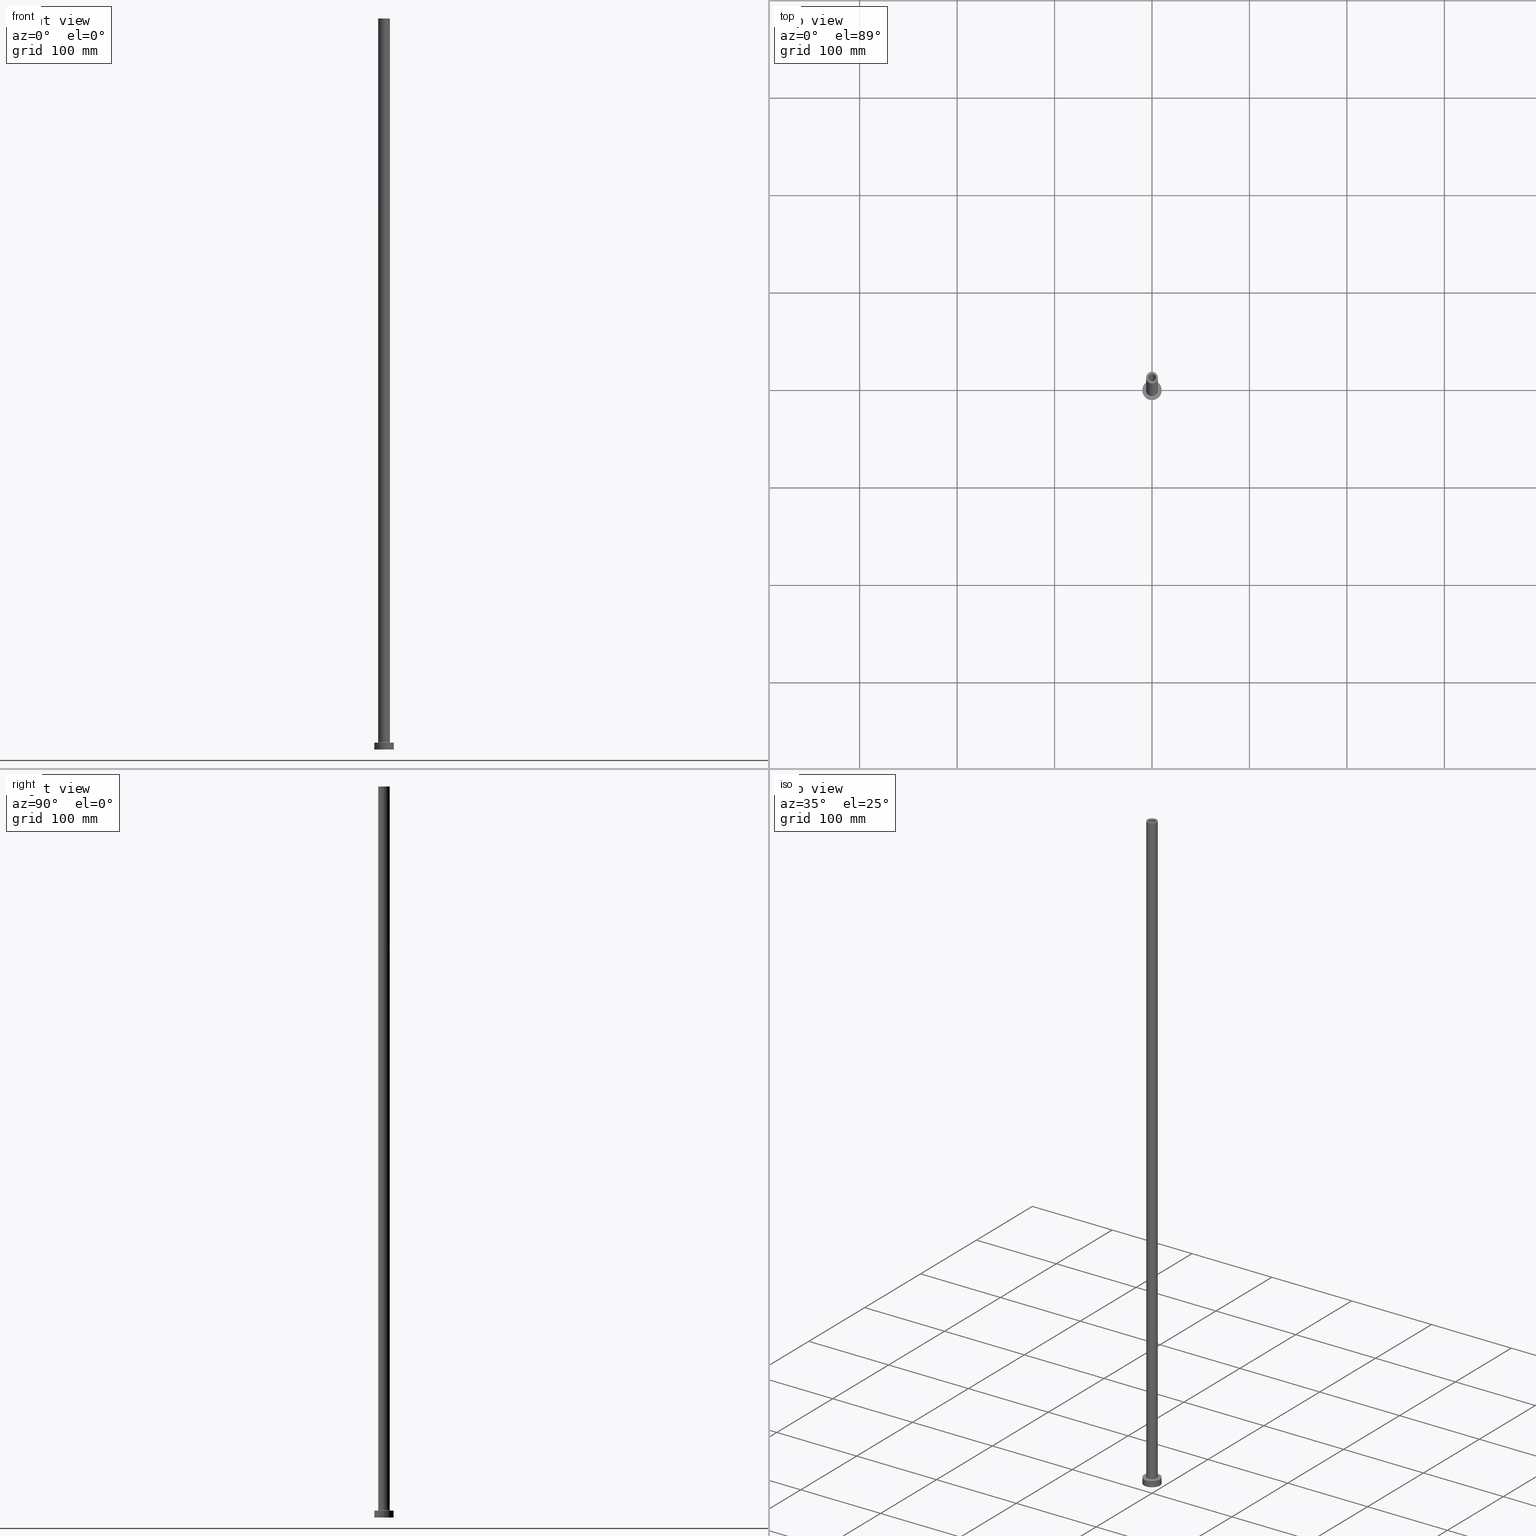
[diagram: canonical four-view strip — front | top / right | iso, engineering-drawing reading convention]
A machine part, canonical four-view strip (front | top / right | iso — engineering-drawing reading convention). The complete STEP part file that produces these views, byte-faithful:
ISO-10303-21;
HEADER;
FILE_DESCRIPTION (( 'STEP AP203' ),
    '1' );
FILE_NAME ('ae1d.STEP',
    '2023-02-13T12:42:11',
    ( '' ),
    ( '' ),
    'SwSTEP 2.0',
    'SolidWorks 2019',
    '' );
FILE_SCHEMA (( 'CONFIG_CONTROL_DESIGN' ));
ENDSEC;

DATA;
#1 = PERSON_AND_ORGANIZATION ( #293, #163 ) ;
#2 = CYLINDRICAL_SURFACE ( 'NONE', #360, 4.000000000000000000 ) ;
#3 = APPROVAL_STATUS ( 'not_yet_approved' ) ;
#4 = CARTESIAN_POINT ( 'NONE',  ( -6.000000000000000888, 0.000000000000000000, 7.700000000000040146 ) ) ;
#5 = AXIS2_PLACEMENT_3D ( 'NONE', #112, #359, #291 ) ;
#6 = APPROVAL_PERSON_ORGANIZATION ( #320, #319, #41 ) ;
#7 = EDGE_LOOP ( 'NONE', ( #169, #125, #131, #316 ) ) ;
#8 = CYLINDRICAL_SURFACE ( 'NONE', #130, 6.000000000000000888 ) ;
#9 = EDGE_CURVE ( 'NONE', #302, #449, #195, .T. ) ;
#10 = FACE_OUTER_BOUND ( 'NONE', #7, .T. ) ;
#11 = UNCERTAINTY_MEASURE_WITH_UNIT (LENGTH_MEASURE( 1.000000000000000082E-05 ), #453, 'distance_accuracy_value', 'NONE');
#12 = ORIENTED_EDGE ( 'NONE', *, *, #348, .F. ) ;
#13 = APPROVAL_STATUS ( 'not_yet_approved' ) ;
#14 = DIRECTION ( 'NONE',  ( -1.000000000000000000, 0.000000000000000000, 0.000000000000000000 ) ) ;
#15 = AXIS2_PLACEMENT_3D ( 'NONE', #233, #129, #236 ) ;
#16 = SECURITY_CLASSIFICATION ( '', '', #37 ) ;
#17 = VERTEX_POINT ( 'NONE', #373 ) ;
#18 = DIRECTION ( 'NONE',  ( 0.000000000000000000, 0.000000000000000000, 1.000000000000000000 ) ) ;
#19 = ORIENTED_EDGE ( 'NONE', *, *, #276, .F. ) ;
#20 = AXIS2_PLACEMENT_3D ( 'NONE', #26, #238, #211 ) ;
#21 = VERTEX_POINT ( 'NONE', #411 ) ;
#22 = LOCAL_TIME ( 13, 42, 11.00000000000000000, #358 ) ;
#23 = ORIENTED_EDGE ( 'NONE', *, *, #222, .F. ) ;
#24 = DIRECTION ( 'NONE',  ( 1.224646799147353207E-16, 1.000000000000000000, -0.000000000000000000 ) ) ;
#25 = PLANE ( 'NONE',  #234 ) ;
#26 = CARTESIAN_POINT ( 'NONE',  ( 0.000000000000000000, 0.000000000000000000, 705.0000000000000000 ) ) ;
#27 = CIRCLE ( 'NONE', #20, 4.000000000000000000 ) ;
#28 = APPROVAL_PERSON_ORGANIZATION ( #156, #275, #189 ) ;
#29 = DIRECTION ( 'NONE',  ( 1.000000000000000000, 0.000000000000000000, 0.000000000000000000 ) ) ;
#30 = EDGE_CURVE ( 'NONE', #132, #160, #85, .T. ) ;
#31 = DIRECTION ( 'NONE',  ( -0.000000000000000000, -0.000000000000000000, -1.000000000000000000 ) ) ;
#32 = AXIS2_PLACEMENT_3D ( 'NONE', #452, #133, #422 ) ;
#33 = DATE_AND_TIME ( #67, #22 ) ;
#34 = DIRECTION ( 'NONE',  ( 0.000000000000000000, 0.000000000000000000, -1.000000000000000000 ) ) ;
#35 = CALENDAR_DATE ( 2023, 13, 2 ) ;
#36 = PRODUCT_DEFINITION_FORMATION_WITH_SPECIFIED_SOURCE ( 'LIBOVOLN�', '', #179, .NOT_KNOWN. ) ;
#37 = SECURITY_CLASSIFICATION_LEVEL ( 'unclassified' ) ;
#38 = EDGE_CURVE ( 'NONE', #242, #128, #277, .T. ) ;
#39 = DIRECTION ( 'NONE',  ( -1.000000000000000000, 0.000000000000000000, 0.000000000000000000 ) ) ;
#40 = EDGE_LOOP ( 'NONE', ( #122, #290 ) ) ;
#41 = APPROVAL_ROLE ( '' ) ;
#42 = DIRECTION ( 'NONE',  ( 0.000000000000000000, 0.000000000000000000, -1.000000000000000000 ) ) ;
#43 = CC_DESIGN_PERSON_AND_ORGANIZATION_ASSIGNMENT ( #278, #250, ( #16 ) ) ;
#44 = DESIGN_CONTEXT ( 'detailed design', #214, 'design' ) ;
#45 = ORIENTED_EDGE ( 'NONE', *, *, #339, .T. ) ;
#46 = EDGE_LOOP ( 'NONE', ( #64, #174, #438, #212 ) ) ;
#47 = DIRECTION ( 'NONE',  ( -1.000000000000000000, 0.000000000000000000, 0.000000000000000000 ) ) ;
#48 = APPROVAL_PERSON_ORGANIZATION ( #402, #460, #256 ) ;
#49 = ADVANCED_FACE ( 'NONE', ( #347 ), #90, .F. ) ;
#50 = ORIENTED_EDGE ( 'NONE', *, *, #393, .F. ) ;
#51 = VERTEX_POINT ( 'NONE', #143 ) ;
#52 = CARTESIAN_POINT ( 'NONE',  ( 10.00000000000000000, 1.224646799147353256E-15, 7.000000000000000000 ) ) ;
#53 = ORIENTED_EDGE ( 'NONE', *, *, #343, .F. ) ;
#54 = CARTESIAN_POINT ( 'NONE',  ( 0.000000000000000000, 0.000000000000000000, 0.000000000000000000 ) ) ;
#55 = VECTOR ( 'NONE', #220, 1000.000000000000000 ) ;
#56 = DIRECTION ( 'NONE',  ( -1.000000000000000000, 0.000000000000000000, 0.000000000000000000 ) ) ;
#57 = CARTESIAN_POINT ( 'NONE',  ( -6.000000000000000888, 0.000000000000000000, 750.0000000000000000 ) ) ;
#58 = PLANE ( 'NONE',  #353 ) ;
#59 = CARTESIAN_POINT ( 'NONE',  ( -4.000000000000000000, 0.000000000000000000, 705.0000000000000000 ) ) ;
#60 = FACE_OUTER_BOUND ( 'NONE', #115, .T. ) ;
#61 = EDGE_CURVE ( 'NONE', #51, #355, #167, .T. ) ;
#62 = AXIS2_PLACEMENT_3D ( 'NONE', #273, #384, #386 ) ;
#63 = DIRECTION ( 'NONE',  ( 0.000000000000000000, 0.000000000000000000, 1.000000000000000000 ) ) ;
#64 = ORIENTED_EDGE ( 'NONE', *, *, #9, .F. ) ;
#65 = VERTEX_POINT ( 'NONE', #57 ) ;
#66 = CIRCLE ( 'NONE', #401, 4.150000000000000355 ) ;
#67 = CALENDAR_DATE ( 2023, 13, 2 ) ;
#68 = CARTESIAN_POINT ( 'NONE',  ( -6.000000000000000888, 0.000000000000000000, 750.0000000000000000 ) ) ;
#69 = EDGE_LOOP ( 'NONE', ( #135, #267, #337, #328 ) ) ;
#70 = SHAPE_DEFINITION_REPRESENTATION ( #176, #365 ) ;
#71 = DIRECTION ( 'NONE',  ( -0.000000000000000000, -0.000000000000000000, -1.000000000000000000 ) ) ;
#72 = CIRCLE ( 'NONE', #340, 10.00000000000000000 ) ;
#73 = ADVANCED_FACE ( 'NONE', ( #318 ), #2, .F. ) ;
#74 = DATE_TIME_ROLE ( 'creation_date' ) ;
#75 = CIRCLE ( 'NONE', #341, 6.000000000000000888 ) ;
#76 = DIRECTION ( 'NONE',  ( 1.000000000000000000, 0.000000000000000000, 0.000000000000000000 ) ) ;
#77 = CC_DESIGN_APPROVAL ( #275, ( #36 ) ) ;
#78 = PERSON_AND_ORGANIZATION ( #293, #163 ) ;
#79 = CARTESIAN_POINT ( 'NONE',  ( 0.000000000000000000, 0.000000000000000000, 750.0000000000000000 ) ) ;
#80 = ORIENTED_EDGE ( 'NONE', *, *, #38, .T. ) ;
#81 = CYLINDRICAL_SURFACE ( 'NONE', #84, 10.00000000000000000 ) ;
#82 = ORIENTED_EDGE ( 'NONE', *, *, #348, .T. ) ;
#83 = CARTESIAN_POINT ( 'NONE',  ( 10.00000000000000000, 1.224646799147353256E-15, 7.000000000000000000 ) ) ;
#84 = AXIS2_PLACEMENT_3D ( 'NONE', #403, #71, #39 ) ;
#85 = LINE ( 'NONE', #208, #286 ) ;
#86 = DIRECTION ( 'NONE',  ( 1.000000000000000000, 0.000000000000000000, -0.000000000000000000 ) ) ;
#87 = ADVANCED_FACE ( 'NONE', ( #424 ), #232, .T. ) ;
#88 = ORIENTED_EDGE ( 'NONE', *, *, #38, .F. ) ;
#89 = CARTESIAN_POINT ( 'NONE',  ( 0.000000000000000000, 0.000000000000000000, 7.000000000000000000 ) ) ;
#90 = CYLINDRICAL_SURFACE ( 'NONE', #311, 4.150000000000000355 ) ;
#91 = ORIENTED_EDGE ( 'NONE', *, *, #98, .T. ) ;
#92 = EDGE_CURVE ( 'NONE', #437, #21, #268, .T. ) ;
#93 = CARTESIAN_POINT ( 'NONE',  ( 0.000000000000000000, 0.000000000000000000, 750.0000000000000000 ) ) ;
#94 = CIRCLE ( 'NONE', #187, 6.000000000000000888 ) ;
#95 = CARTESIAN_POINT ( 'NONE',  ( -6.700000000000001066, 8.205133554287267548E-16, 7.000000000000020428 ) ) ;
#96 = DIRECTION ( 'NONE',  ( 1.000000000000000000, 0.000000000000000000, -0.000000000000000000 ) ) ;
#97 = CARTESIAN_POINT ( 'NONE',  ( 10.00000000000000000, 1.224646799147353256E-15, 0.000000000000000000 ) ) ;
#98 = EDGE_CURVE ( 'NONE', #65, #302, #243, .T. ) ;
#99 = CARTESIAN_POINT ( 'NONE',  ( 0.000000000000000000, 0.000000000000000000, 750.0000000000000000 ) ) ;
#100 = DIRECTION ( 'NONE',  ( 0.000000000000000000, 0.000000000000000000, -1.000000000000000000 ) ) ;
#101 = VECTOR ( 'NONE', #42, 1000.000000000000000 ) ;
#102 = LOCAL_TIME ( 13, 42, 11.00000000000000000, #361 ) ;
#103 = MANIFOLD_SOLID_BREP ( 'Odebrat vysunut�m4', #108 ) ;
#104 = EDGE_LOOP ( 'NONE', ( #50, #12 ) ) ;
#105 = ORIENTED_EDGE ( 'NONE', *, *, #215, .F. ) ;
#106 = MECHANICAL_CONTEXT ( 'NONE', #300, 'mechanical' ) ;
#107 = EDGE_CURVE ( 'NONE', #376, #408, #425, .T. ) ;
#108 = CLOSED_SHELL ( 'NONE', ( #306, #49, #172, #258, #228, #336, #432, #457, #87, #428, #314, #352, #369, #73 ) ) ;
#109 = ORIENTED_EDGE ( 'NONE', *, *, #379, .T. ) ;
#110 = APPROVAL_DATE_TIME ( #33, #275 ) ;
#111 = CC_DESIGN_PERSON_AND_ORGANIZATION_ASSIGNMENT ( #1, #283, ( #36 ) ) ;
#112 = CARTESIAN_POINT ( 'NONE',  ( 0.000000000000000000, 0.000000000000000000, 0.000000000000000000 ) ) ;
#113 = DIRECTION ( 'NONE',  ( -0.000000000000000000, -0.000000000000000000, -1.000000000000000000 ) ) ;
#114 = ORIENTED_EDGE ( 'NONE', *, *, #205, .F. ) ;
#115 = EDGE_LOOP ( 'NONE', ( #114, #80, #333, #23 ) ) ;
#116 = DATE_AND_TIME ( #399, #120 ) ;
#117 = DIRECTION ( 'NONE',  ( -1.000000000000000000, 0.000000000000000000, 0.000000000000000000 ) ) ;
#118 = CIRCLE ( 'NONE', #15, 4.000000000000000000 ) ;
#119 = CARTESIAN_POINT ( 'NONE',  ( 4.150000000000000355, 5.082284216461515156E-16, 716.7379725676967155 ) ) ;
#120 = LOCAL_TIME ( 13, 42, 11.00000000000000000, #186 ) ;
#121 = ORIENTED_EDGE ( 'NONE', *, *, #446, .F. ) ;
#122 = ORIENTED_EDGE ( 'NONE', *, *, #145, .T. ) ;
#123 = DIRECTION ( 'NONE',  ( 1.000000000000000000, 0.000000000000000000, 0.000000000000000000 ) ) ;
#124 = EDGE_LOOP ( 'NONE', ( #216, #264 ) ) ;
#125 = ORIENTED_EDGE ( 'NONE', *, *, #285, .T. ) ;
#126 = EDGE_CURVE ( 'NONE', #357, #437, #72, .T. ) ;
#127 = DIRECTION ( 'NONE',  ( 1.000000000000000000, 0.000000000000000000, -0.000000000000000000 ) ) ;
#128 = VERTEX_POINT ( 'NONE', #95 ) ;
#129 = DIRECTION ( 'NONE',  ( 0.000000000000000000, 0.000000000000000000, 1.000000000000000000 ) ) ;
#130 = AXIS2_PLACEMENT_3D ( 'NONE', #440, #191, #14 ) ;
#131 = ORIENTED_EDGE ( 'NONE', *, *, #145, .F. ) ;
#132 = VERTEX_POINT ( 'NONE', #235 ) ;
#133 = DIRECTION ( 'NONE',  ( 0.000000000000000000, 0.000000000000000000, 1.000000000000000000 ) ) ;
#134 = VERTEX_POINT ( 'NONE', #97 ) ;
#135 = ORIENTED_EDGE ( 'NONE', *, *, #396, .F. ) ;
#136 = CARTESIAN_POINT ( 'NONE',  ( 0.000000000000000000, 0.000000000000000000, 7.700000000000040146 ) ) ;
#137 = CARTESIAN_POINT ( 'NONE',  ( 0.000000000000000000, 0.000000000000000000, 705.0000000000000000 ) ) ;
#138 = DIRECTION ( 'NONE',  ( 1.000000000000000000, 0.000000000000000000, 0.000000000000000000 ) ) ;
#139 = AXIS2_PLACEMENT_3D ( 'NONE', #427, #63, #206 ) ;
#140 = DIRECTION ( 'NONE',  ( 0.000000000000000000, 0.000000000000000000, -1.000000000000000000 ) ) ;
#141 = EDGE_CURVE ( 'NONE', #134, #21, #297, .T. ) ;
#142 = CARTESIAN_POINT ( 'NONE',  ( 0.000000000000000000, 0.000000000000000000, 750.0000000000000000 ) ) ;
#143 = CARTESIAN_POINT ( 'NONE',  ( -4.150000000000000355, 0.000000000000000000, 705.0000000000000000 ) ) ;
#144 = VECTOR ( 'NONE', #407, 1000.000000000000000 ) ;
#145 = EDGE_CURVE ( 'NONE', #160, #366, #171, .T. ) ;
#146 = VECTOR ( 'NONE', #364, 1000.000000000000000 ) ;
#147 = EDGE_CURVE ( 'NONE', #366, #160, #27, .T. ) ;
#148 = APPLICATION_PROTOCOL_DEFINITION ( 'international standard', 'config_control_design', 1994, #300 ) ;
#149 = CC_DESIGN_PERSON_AND_ORGANIZATION_ASSIGNMENT ( #150, #323, ( #36 ) ) ;
#150 = PERSON_AND_ORGANIZATION ( #293, #163 ) ;
#151 = DIRECTION ( 'NONE',  ( 0.000000000000000000, 0.000000000000000000, -1.000000000000000000 ) ) ;
#152 = COORDINATED_UNIVERSAL_TIME_OFFSET ( 1, 0, .AHEAD. ) ;
#153 = EDGE_CURVE ( 'NONE', #437, #357, #262, .T. ) ;
#154 = CARTESIAN_POINT ( 'NONE',  ( 6.700000000000001066, 0.000000000000000000, 7.700000000000040146 ) ) ;
#155 = EDGE_LOOP ( 'NONE', ( #329, #82, #404, #261 ) ) ;
#156 = PERSON_AND_ORGANIZATION ( #293, #163 ) ;
#157 = DIRECTION ( 'NONE',  ( 0.000000000000000000, 0.000000000000000000, 1.000000000000000000 ) ) ;
#158 = PERSON_AND_ORGANIZATION ( #293, #163 ) ;
#159 = FACE_OUTER_BOUND ( 'NONE', #165, .T. ) ;
#160 = VERTEX_POINT ( 'NONE', #59 ) ;
#161 = ORIENTED_EDGE ( 'NONE', *, *, #304, .T. ) ;
#162 = DIRECTION ( 'NONE',  ( 0.000000000000000000, -1.000000000000000000, 0.000000000000000000 ) ) ;
#163 = ORGANIZATION ( 'NEUR�EN�', 'NEUR�EN�', '' ) ;
#164 = CARTESIAN_POINT ( 'NONE',  ( 4.150000000000000355, 5.082284216461515156E-16, 0.000000000000000000 ) ) ;
#165 = EDGE_LOOP ( 'NONE', ( #88, #301, #414, #224 ) ) ;
#166 =( NAMED_UNIT ( * ) SI_UNIT ( $, .STERADIAN. ) SOLID_ANGLE_UNIT ( ) );
#167 = CIRCLE ( 'NONE', #431, 4.150000000000000355 ) ;
#168 = ORIENTED_EDGE ( 'NONE', *, *, #248, .F. ) ;
#169 = ORIENTED_EDGE ( 'NONE', *, *, #393, .T. ) ;
#170 = FACE_OUTER_BOUND ( 'NONE', #296, .T. ) ;
#171 = CIRCLE ( 'NONE', #139, 4.000000000000000000 ) ;
#172 = ADVANCED_FACE ( 'NONE', ( #60 ), #274, .F. ) ;
#173 = ORIENTED_EDGE ( 'NONE', *, *, #343, .T. ) ;
#174 = ORIENTED_EDGE ( 'NONE', *, *, #98, .F. ) ;
#175 = DIRECTION ( 'NONE',  ( 0.000000000000000000, 0.000000000000000000, 1.000000000000000000 ) ) ;
#176 = PRODUCT_DEFINITION_SHAPE ( 'NONE', 'NONE',  #447 ) ;
#177 = CARTESIAN_POINT ( 'NONE',  ( 0.000000000000000000, 0.000000000000000000, 0.000000000000000000 ) ) ;
#178 = DIRECTION ( 'NONE',  ( 0.000000000000000000, 0.000000000000000000, 1.000000000000000000 ) ) ;
#179 = PRODUCT ( 'ae1d', 'ae1d', '', ( #106 ) ) ;
#180 = CIRCLE ( 'NONE', #5, 4.150000000000000355 ) ;
#181 = DIRECTION ( 'NONE',  ( 0.000000000000000000, 0.000000000000000000, 1.000000000000000000 ) ) ;
#182 = CARTESIAN_POINT ( 'NONE',  ( 0.000000000000000000, 0.000000000000000000, 750.0000000000000000 ) ) ;
#183 = CARTESIAN_POINT ( 'NONE',  ( 0.000000000000000000, 0.000000000000000000, 705.0000000000000000 ) ) ;
#184 = AXIS2_PLACEMENT_3D ( 'NONE', #89, #342, #86 ) ;
#185 = ORIENTED_EDGE ( 'NONE', *, *, #153, .T. ) ;
#186 = COORDINATED_UNIVERSAL_TIME_OFFSET ( 1, 0, .AHEAD. ) ;
#187 = AXIS2_PLACEMENT_3D ( 'NONE', #252, #439, #368 ) ;
#188 = AXIS2_PLACEMENT_3D ( 'NONE', #154, #162, #151 ) ;
#189 = APPROVAL_ROLE ( '' ) ;
#190 = CARTESIAN_POINT ( 'NONE',  ( 4.000000000000000000, 4.898587196589412829E-16, 750.0000000000000000 ) ) ;
#191 = DIRECTION ( 'NONE',  ( -0.000000000000000000, -0.000000000000000000, -1.000000000000000000 ) ) ;
#192 = ORIENTED_EDGE ( 'NONE', *, *, #92, .F. ) ;
#193 = APPROVAL_STATUS ( 'not_yet_approved' ) ;
#194 = CYLINDRICAL_SURFACE ( 'NONE', #388, 4.000000000000000000 ) ;
#195 = LINE ( 'NONE', #259, #144 ) ;
#196 =( GEOMETRIC_REPRESENTATION_CONTEXT ( 3 ) GLOBAL_UNCERTAINTY_ASSIGNED_CONTEXT ( ( #11 ) ) GLOBAL_UNIT_ASSIGNED_CONTEXT ( ( #453, #409, #166 ) ) REPRESENTATION_CONTEXT ( 'NONE', 'WORKASPACE' ) );
#197 = CARTESIAN_POINT ( 'NONE',  ( 0.000000000000000000, 0.000000000000000000, 7.700000000000040146 ) ) ;
#198 = CC_DESIGN_APPROVAL ( #319, ( #16 ) ) ;
#199 = ORIENTED_EDGE ( 'NONE', *, *, #269, .T. ) ;
#200 = AXIS2_PLACEMENT_3D ( 'NONE', #210, #24, #387 ) ;
#201 = DIRECTION ( 'NONE',  ( 0.000000000000000000, 0.000000000000000000, 1.000000000000000000 ) ) ;
#202 = CIRCLE ( 'NONE', #392, 4.000000000000000000 ) ;
#203 = DIRECTION ( 'NONE',  ( -0.000000000000000000, -0.000000000000000000, -1.000000000000000000 ) ) ;
#204 = FACE_OUTER_BOUND ( 'NONE', #444, .T. ) ;
#205 = EDGE_CURVE ( 'NONE', #242, #449, #461, .T. ) ;
#206 = DIRECTION ( 'NONE',  ( 1.000000000000000000, 0.000000000000000000, 0.000000000000000000 ) ) ;
#207 = DIRECTION ( 'NONE',  ( 1.000000000000000000, 0.000000000000000000, -0.000000000000000000 ) ) ;
#208 = CARTESIAN_POINT ( 'NONE',  ( -4.000000000000000000, 0.000000000000000000, 750.0000000000000000 ) ) ;
#209 = AXIS2_PLACEMENT_3D ( 'NONE', #272, #350, #29 ) ;
#210 = CARTESIAN_POINT ( 'NONE',  ( -6.700000000000001066, 8.205133554287267548E-16, 7.700000000000040146 ) ) ;
#211 = DIRECTION ( 'NONE',  ( 1.000000000000000000, 0.000000000000000000, 0.000000000000000000 ) ) ;
#212 = ORIENTED_EDGE ( 'NONE', *, *, #205, .T. ) ;
#213 = PERSON_AND_ORGANIZATION_ROLE ( 'creator' ) ;
#214 = APPLICATION_CONTEXT ( 'configuration controlled 3d designs of mechanical parts and assemblies' ) ;
#215 = EDGE_CURVE ( 'NONE', #355, #51, #66, .T. ) ;
#216 = ORIENTED_EDGE ( 'NONE', *, *, #107, .F. ) ;
#217 = CARTESIAN_POINT ( 'NONE',  ( 4.000000000000000000, 4.898587196589412829E-16, 750.0000000000000000 ) ) ;
#218 = AXIS2_PLACEMENT_3D ( 'NONE', #177, #203, #237 ) ;
#219 = DIRECTION ( 'NONE',  ( 0.000000000000000000, 0.000000000000000000, -1.000000000000000000 ) ) ;
#220 = DIRECTION ( 'NONE',  ( 0.000000000000000000, 0.000000000000000000, -1.000000000000000000 ) ) ;
#221 = ORIENTED_EDGE ( 'NONE', *, *, #61, .T. ) ;
#222 = EDGE_CURVE ( 'NONE', #449, #17, #307, .T. ) ;
#223 = CARTESIAN_POINT ( 'NONE',  ( -4.150000000000000355, 0.000000000000000000, 716.7379725676967155 ) ) ;
#224 = ORIENTED_EDGE ( 'NONE', *, *, #339, .F. ) ;
#225 = DIRECTION ( 'NONE',  ( 0.000000000000000000, 0.000000000000000000, -1.000000000000000000 ) ) ;
#226 = AXIS2_PLACEMENT_3D ( 'NONE', #430, #312, #429 ) ;
#227 = LINE ( 'NONE', #52, #382 ) ;
#228 = ADVANCED_FACE ( 'NONE', ( #321 ), #81, .T. ) ;
#229 = VERTEX_POINT ( 'NONE', #190 ) ;
#230 = ORIENTED_EDGE ( 'NONE', *, *, #276, .T. ) ;
#231 = CARTESIAN_POINT ( 'NONE',  ( 6.000000000000000888, 7.347880794884119736E-16, 7.700000000000040146 ) ) ;
#232 = CYLINDRICAL_SURFACE ( 'NONE', #331, 6.000000000000000888 ) ;
#233 = CARTESIAN_POINT ( 'NONE',  ( 0.000000000000000000, 0.000000000000000000, 750.0000000000000000 ) ) ;
#234 = AXIS2_PLACEMENT_3D ( 'NONE', #377, #175, #96 ) ;
#235 = CARTESIAN_POINT ( 'NONE',  ( -4.000000000000000000, 0.000000000000000000, 750.0000000000000000 ) ) ;
#236 = DIRECTION ( 'NONE',  ( 1.000000000000000000, 0.000000000000000000, 0.000000000000000000 ) ) ;
#237 = DIRECTION ( 'NONE',  ( 1.000000000000000000, 0.000000000000000000, 0.000000000000000000 ) ) ;
#238 = DIRECTION ( 'NONE',  ( 0.000000000000000000, 0.000000000000000000, 1.000000000000000000 ) ) ;
#239 = AXIS2_PLACEMENT_3D ( 'NONE', #266, #181, #308 ) ;
#240 = DIRECTION ( 'NONE',  ( -1.000000000000000000, 0.000000000000000000, 0.000000000000000000 ) ) ;
#241 = CC_DESIGN_APPROVAL ( #460, ( #447 ) ) ;
#242 = VERTEX_POINT ( 'NONE', #4 ) ;
#243 = CIRCLE ( 'NONE', #426, 6.000000000000000888 ) ;
#244 = EDGE_LOOP ( 'NONE', ( #371, #263, #354, #192 ) ) ;
#245 = AXIS2_PLACEMENT_3D ( 'NONE', #93, #445, #127 ) ;
#246 = DATE_TIME_ROLE ( 'classification_date' ) ;
#247 = DIRECTION ( 'NONE',  ( -0.000000000000000000, -0.000000000000000000, -1.000000000000000000 ) ) ;
#248 = EDGE_CURVE ( 'NONE', #65, #242, #332, .T. ) ;
#249 = ORIENTED_EDGE ( 'NONE', *, *, #309, .F. ) ;
#250 = PERSON_AND_ORGANIZATION_ROLE ( 'classification_officer' ) ;
#251 = DIRECTION ( 'NONE',  ( 1.000000000000000000, 0.000000000000000000, 0.000000000000000000 ) ) ;
#252 = CARTESIAN_POINT ( 'NONE',  ( 0.000000000000000000, 0.000000000000000000, 750.0000000000000000 ) ) ;
#253 = TOROIDAL_SURFACE ( 'NONE', #412, 6.700000000000001066, 0.6999999999999999556 ) ;
#254 = CC_DESIGN_DATE_AND_TIME_ASSIGNMENT ( #367, #74, ( #447 ) ) ;
#255 = DIRECTION ( 'NONE',  ( 0.000000000000000000, 0.000000000000000000, 1.000000000000000000 ) ) ;
#256 = APPROVAL_ROLE ( '' ) ;
#257 = CARTESIAN_POINT ( 'NONE',  ( 0.000000000000000000, 0.000000000000000000, 7.000000000000000000 ) ) ;
#258 = ADVANCED_FACE ( 'NONE', ( #325 ), #8, .T. ) ;
#259 = CARTESIAN_POINT ( 'NONE',  ( 6.000000000000000888, 7.347880794884119736E-16, 750.0000000000000000 ) ) ;
#260 = EDGE_LOOP ( 'NONE', ( #185, #451 ) ) ;
#261 = ORIENTED_EDGE ( 'NONE', *, *, #147, .F. ) ;
#262 = CIRCLE ( 'NONE', #289, 10.00000000000000000 ) ;
#263 = ORIENTED_EDGE ( 'NONE', *, *, #396, .T. ) ;
#264 = ORIENTED_EDGE ( 'NONE', *, *, #304, .F. ) ;
#265 = PLANE ( 'NONE',  #184 ) ;
#266 = CARTESIAN_POINT ( 'NONE',  ( 0.000000000000000000, 0.000000000000000000, 7.700000000000040146 ) ) ;
#267 = ORIENTED_EDGE ( 'NONE', *, *, #153, .F. ) ;
#268 = LINE ( 'NONE', #346, #390 ) ;
#269 = EDGE_CURVE ( 'NONE', #17, #128, #349, .T. ) ;
#270 = PLANE ( 'NONE',  #245 ) ;
#271 = DIRECTION ( 'NONE',  ( -0.000000000000000000, -0.000000000000000000, -1.000000000000000000 ) ) ;
#272 = CARTESIAN_POINT ( 'NONE',  ( 0.000000000000000000, 0.000000000000000000, 7.700000000000040146 ) ) ;
#273 = CARTESIAN_POINT ( 'NONE',  ( 0.000000000000000000, 0.000000000000000000, 0.000000000000000000 ) ) ;
#274 = TOROIDAL_SURFACE ( 'NONE', #239, 6.700000000000001066, 0.6999999999999999556 ) ;
#275 = APPROVAL ( #13, 'NEUR�EN�' ) ;
#276 = EDGE_CURVE ( 'NONE', #355, #408, #284, .T. ) ;
#277 = CIRCLE ( 'NONE', #200, 0.7000000000000000666 ) ;
#278 = PERSON_AND_ORGANIZATION ( #293, #163 ) ;
#279 = CARTESIAN_POINT ( 'NONE',  ( 0.000000000000000000, 0.000000000000000000, 7.000000000000000000 ) ) ;
#280 = AXIS2_PLACEMENT_3D ( 'NONE', #279, #247, #327 ) ;
#281 = CALENDAR_DATE ( 2023, 13, 2 ) ;
#282 = DIRECTION ( 'NONE',  ( -1.000000000000000000, 0.000000000000000000, 0.000000000000000000 ) ) ;
#283 = PERSON_AND_ORGANIZATION_ROLE ( 'creator' ) ;
#284 = LINE ( 'NONE', #119, #101 ) ;
#285 = EDGE_CURVE ( 'NONE', #229, #366, #395, .T. ) ;
#286 = VECTOR ( 'NONE', #423, 1000.000000000000000 ) ;
#287 = FACE_OUTER_BOUND ( 'NONE', #434, .T. ) ;
#288 = ORIENTED_EDGE ( 'NONE', *, *, #107, .T. ) ;
#289 = AXIS2_PLACEMENT_3D ( 'NONE', #351, #178, #305 ) ;
#290 = ORIENTED_EDGE ( 'NONE', *, *, #147, .T. ) ;
#291 = DIRECTION ( 'NONE',  ( 1.000000000000000000, 0.000000000000000000, 0.000000000000000000 ) ) ;
#292 = ORIENTED_EDGE ( 'NONE', *, *, #61, .F. ) ;
#293 = PERSON ( 'NEUR�EN�', 'NEUR�EN�', 'NEUR�EN�', ('NEUR�EN�'), ('NEUR�EN�'), ('NEUR�EN�') ) ;
#294 = ORIENTED_EDGE ( 'NONE', *, *, #309, .T. ) ;
#295 = FACE_BOUND ( 'NONE', #40, .T. ) ;
#296 = EDGE_LOOP ( 'NONE', ( #91, #294 ) ) ;
#297 = CIRCLE ( 'NONE', #62, 10.00000000000000000 ) ;
#298 = LOCAL_TIME ( 13, 42, 11.00000000000000000, #152 ) ;
#299 = CARTESIAN_POINT ( 'NONE',  ( -10.00000000000000000, 0.000000000000000000, 7.000000000000000000 ) ) ;
#300 = APPLICATION_CONTEXT ( 'configuration controlled 3d designs of mechanical parts and assemblies' ) ;
#301 = ORIENTED_EDGE ( 'NONE', *, *, #379, .F. ) ;
#302 = VERTEX_POINT ( 'NONE', #433 ) ;
#303 = DIRECTION ( 'NONE',  ( 1.000000000000000000, 0.000000000000000000, 0.000000000000000000 ) ) ;
#304 = EDGE_CURVE ( 'NONE', #408, #376, #180, .T. ) ;
#305 = DIRECTION ( 'NONE',  ( 1.000000000000000000, 0.000000000000000000, 0.000000000000000000 ) ) ;
#306 = ADVANCED_FACE ( 'NONE', ( #10 ), #194, .F. ) ;
#307 = CIRCLE ( 'NONE', #188, 0.7000000000000000666 ) ;
#308 = DIRECTION ( 'NONE',  ( 1.000000000000000000, 0.000000000000000000, 0.000000000000000000 ) ) ;
#309 = EDGE_CURVE ( 'NONE', #302, #65, #94, .T. ) ;
#310 = DIRECTION ( 'NONE',  ( 0.000000000000000000, 0.000000000000000000, 1.000000000000000000 ) ) ;
#311 = AXIS2_PLACEMENT_3D ( 'NONE', #456, #140, #459 ) ;
#312 = DIRECTION ( 'NONE',  ( 0.000000000000000000, 0.000000000000000000, 1.000000000000000000 ) ) ;
#313 = AXIS2_PLACEMENT_3D ( 'NONE', #400, #113, #251 ) ;
#314 = ADVANCED_FACE ( 'NONE', ( #159 ), #253, .F. ) ;
#315 = EDGE_LOOP ( 'NONE', ( #249, #416, #109, #168 ) ) ;
#316 = ORIENTED_EDGE ( 'NONE', *, *, #30, .F. ) ;
#317 = APPLICATION_PROTOCOL_DEFINITION ( 'international standard', 'config_control_design', 1994, #214 ) ;
#318 = FACE_OUTER_BOUND ( 'NONE', #155, .T. ) ;
#319 = APPROVAL ( #3, 'NEUR�EN�' ) ;
#320 = PERSON_AND_ORGANIZATION ( #293, #163 ) ;
#321 = FACE_OUTER_BOUND ( 'NONE', #244, .T. ) ;
#322 = LOCAL_TIME ( 13, 42, 11.00000000000000000, #405 ) ;
#323 = PERSON_AND_ORGANIZATION_ROLE ( 'design_supplier' ) ;
#324 = CC_DESIGN_PERSON_AND_ORGANIZATION_ASSIGNMENT ( #78, #213, ( #447 ) ) ;
#325 = FACE_OUTER_BOUND ( 'NONE', #315, .T. ) ;
#326 = APPROVAL_DATE_TIME ( #330, #460 ) ;
#327 = DIRECTION ( 'NONE',  ( 1.000000000000000000, 0.000000000000000000, 0.000000000000000000 ) ) ;
#328 = ORIENTED_EDGE ( 'NONE', *, *, #446, .T. ) ;
#329 = ORIENTED_EDGE ( 'NONE', *, *, #285, .F. ) ;
#330 = DATE_AND_TIME ( #356, #102 ) ;
#331 = AXIS2_PLACEMENT_3D ( 'NONE', #182, #31, #240 ) ;
#332 = LINE ( 'NONE', #68, #146 ) ;
#333 = ORIENTED_EDGE ( 'NONE', *, *, #269, .F. ) ;
#334 = ORIENTED_EDGE ( 'NONE', *, *, #215, .T. ) ;
#335 = DIRECTION ( 'NONE',  ( -0.000000000000000000, -0.000000000000000000, -1.000000000000000000 ) ) ;
#336 = ADVANCED_FACE ( 'NONE', ( #436 ), #372, .T. ) ;
#337 = ORIENTED_EDGE ( 'NONE', *, *, #92, .T. ) ;
#338 = FACE_BOUND ( 'NONE', #104, .T. ) ;
#339 = EDGE_CURVE ( 'NONE', #128, #17, #450, .T. ) ;
#340 = AXIS2_PLACEMENT_3D ( 'NONE', #389, #454, #421 ) ;
#341 = AXIS2_PLACEMENT_3D ( 'NONE', #136, #18, #138 ) ;
#342 = DIRECTION ( 'NONE',  ( 0.000000000000000000, 0.000000000000000000, 1.000000000000000000 ) ) ;
#343 = EDGE_CURVE ( 'NONE', #51, #376, #398, .T. ) ;
#344 = DIRECTION ( 'NONE',  ( 1.000000000000000000, 0.000000000000000000, 0.000000000000000000 ) ) ;
#345 = FACE_BOUND ( 'NONE', #391, .T. ) ;
#346 = CARTESIAN_POINT ( 'NONE',  ( -10.00000000000000000, 0.000000000000000000, 7.000000000000000000 ) ) ;
#347 = FACE_OUTER_BOUND ( 'NONE', #378, .T. ) ;
#348 = EDGE_CURVE ( 'NONE', #229, #132, #202, .T. ) ;
#349 = CIRCLE ( 'NONE', #280, 6.700000000000001066 ) ;
#350 = DIRECTION ( 'NONE',  ( 0.000000000000000000, 0.000000000000000000, 1.000000000000000000 ) ) ;
#351 = CARTESIAN_POINT ( 'NONE',  ( 0.000000000000000000, 0.000000000000000000, 7.000000000000000000 ) ) ;
#352 = ADVANCED_FACE ( 'NONE', ( #287 ), #443, .F. ) ;
#353 = AXIS2_PLACEMENT_3D ( 'NONE', #54, #201, #207 ) ;
#354 = ORIENTED_EDGE ( 'NONE', *, *, #141, .T. ) ;
#355 = VERTEX_POINT ( 'NONE', #417 ) ;
#356 = CALENDAR_DATE ( 2023, 13, 2 ) ;
#357 = VERTEX_POINT ( 'NONE', #83 ) ;
#358 = COORDINATED_UNIVERSAL_TIME_OFFSET ( 1, 0, .AHEAD. ) ;
#359 = DIRECTION ( 'NONE',  ( -0.000000000000000000, -0.000000000000000000, -1.000000000000000000 ) ) ;
#360 = AXIS2_PLACEMENT_3D ( 'NONE', #99, #100, #56 ) ;
#361 = COORDINATED_UNIVERSAL_TIME_OFFSET ( 1, 0, .AHEAD. ) ;
#362 = CARTESIAN_POINT ( 'NONE',  ( 0.000000000000000000, 0.000000000000000000, 750.0000000000000000 ) ) ;
#363 = AXIS2_PLACEMENT_3D ( 'NONE', #406, #225, #47 ) ;
#364 = DIRECTION ( 'NONE',  ( -0.000000000000000000, -0.000000000000000000, -1.000000000000000000 ) ) ;
#365 = ADVANCED_BREP_SHAPE_REPRESENTATION ( 'ae1d', ( #103, #226 ), #196 ) ;
#366 = VERTEX_POINT ( 'NONE', #420 ) ;
#367 = DATE_AND_TIME ( #35, #322 ) ;
#368 = DIRECTION ( 'NONE',  ( 1.000000000000000000, 0.000000000000000000, 0.000000000000000000 ) ) ;
#369 = ADVANCED_FACE ( 'NONE', ( #295, #204 ), #25, .F. ) ;
#370 = ORIENTED_EDGE ( 'NONE', *, *, #141, .F. ) ;
#371 = ORIENTED_EDGE ( 'NONE', *, *, #126, .F. ) ;
#372 = CYLINDRICAL_SURFACE ( 'NONE', #448, 10.00000000000000000 ) ;
#373 = CARTESIAN_POINT ( 'NONE',  ( 6.700000000000001066, 0.000000000000000000, 7.000000000000020428 ) ) ;
#374 = VECTOR ( 'NONE', #219, 1000.000000000000000 ) ;
#375 = DIRECTION ( 'NONE',  ( -0.000000000000000000, -0.000000000000000000, -1.000000000000000000 ) ) ;
#376 = VERTEX_POINT ( 'NONE', #455 ) ;
#377 = CARTESIAN_POINT ( 'NONE',  ( 0.000000000000000000, 0.000000000000000000, 705.0000000000000000 ) ) ;
#378 = EDGE_LOOP ( 'NONE', ( #221, #230, #161, #53 ) ) ;
#379 = EDGE_CURVE ( 'NONE', #449, #242, #75, .T. ) ;
#380 = FACE_BOUND ( 'NONE', #124, .T. ) ;
#381 = DIRECTION ( 'NONE',  ( 0.000000000000000000, 0.000000000000000000, 1.000000000000000000 ) ) ;
#382 = VECTOR ( 'NONE', #375, 1000.000000000000000 ) ;
#383 = CC_DESIGN_SECURITY_CLASSIFICATION ( #16, ( #36 ) ) ;
#384 = DIRECTION ( 'NONE',  ( 0.000000000000000000, 0.000000000000000000, 1.000000000000000000 ) ) ;
#385 = FACE_OUTER_BOUND ( 'NONE', #442, .T. ) ;
#386 = DIRECTION ( 'NONE',  ( 1.000000000000000000, 0.000000000000000000, 0.000000000000000000 ) ) ;
#387 = DIRECTION ( 'NONE',  ( -1.000000000000000000, 1.224646799147353454E-16, 0.000000000000000000 ) ) ;
#388 = AXIS2_PLACEMENT_3D ( 'NONE', #79, #34, #282 ) ;
#389 = CARTESIAN_POINT ( 'NONE',  ( 0.000000000000000000, 0.000000000000000000, 7.000000000000000000 ) ) ;
#390 = VECTOR ( 'NONE', #271, 1000.000000000000000 ) ;
#391 = EDGE_LOOP ( 'NONE', ( #199, #45 ) ) ;
#392 = AXIS2_PLACEMENT_3D ( 'NONE', #362, #157, #76 ) ;
#393 = EDGE_CURVE ( 'NONE', #132, #229, #118, .T. ) ;
#394 = PERSON_AND_ORGANIZATION_ROLE ( 'design_owner' ) ;
#395 = LINE ( 'NONE', #217, #55 ) ;
#396 = EDGE_CURVE ( 'NONE', #357, #134, #227, .T. ) ;
#397 = APPROVAL_DATE_TIME ( #435, #319 ) ;
#398 = LINE ( 'NONE', #223, #374 ) ;
#399 = CALENDAR_DATE ( 2023, 13, 2 ) ;
#400 = CARTESIAN_POINT ( 'NONE',  ( 0.000000000000000000, 0.000000000000000000, 7.000000000000000000 ) ) ;
#401 = AXIS2_PLACEMENT_3D ( 'NONE', #183, #310, #418 ) ;
#402 = PERSON_AND_ORGANIZATION ( #293, #163 ) ;
#403 = CARTESIAN_POINT ( 'NONE',  ( 0.000000000000000000, 0.000000000000000000, 7.000000000000000000 ) ) ;
#404 = ORIENTED_EDGE ( 'NONE', *, *, #30, .T. ) ;
#405 = COORDINATED_UNIVERSAL_TIME_OFFSET ( 1, 0, .AHEAD. ) ;
#406 = CARTESIAN_POINT ( 'NONE',  ( 0.000000000000000000, 0.000000000000000000, 716.7379725676967155 ) ) ;
#407 = DIRECTION ( 'NONE',  ( -0.000000000000000000, -0.000000000000000000, -1.000000000000000000 ) ) ;
#408 = VERTEX_POINT ( 'NONE', #164 ) ;
#409 =( NAMED_UNIT ( * ) PLANE_ANGLE_UNIT ( ) SI_UNIT ( $, .RADIAN. ) );
#410 = CC_DESIGN_DATE_AND_TIME_ASSIGNMENT ( #116, #246, ( #16 ) ) ;
#411 = CARTESIAN_POINT ( 'NONE',  ( -10.00000000000000000, 0.000000000000000000, 0.000000000000000000 ) ) ;
#412 = AXIS2_PLACEMENT_3D ( 'NONE', #197, #255, #123 ) ;
#413 = FACE_OUTER_BOUND ( 'NONE', #260, .T. ) ;
#414 = ORIENTED_EDGE ( 'NONE', *, *, #222, .T. ) ;
#415 = CC_DESIGN_PERSON_AND_ORGANIZATION_ASSIGNMENT ( #158, #394, ( #179 ) ) ;
#416 = ORIENTED_EDGE ( 'NONE', *, *, #9, .T. ) ;
#417 = CARTESIAN_POINT ( 'NONE',  ( 4.150000000000000355, 5.082284216461515156E-16, 705.0000000000000000 ) ) ;
#418 = DIRECTION ( 'NONE',  ( 1.000000000000000000, 0.000000000000000000, 0.000000000000000000 ) ) ;
#419 = PRODUCT_RELATED_PRODUCT_CATEGORY ( 'detail', '', ( #179 ) ) ;
#420 = CARTESIAN_POINT ( 'NONE',  ( 4.000000000000000000, 4.898587196589412829E-16, 705.0000000000000000 ) ) ;
#421 = DIRECTION ( 'NONE',  ( 1.000000000000000000, 0.000000000000000000, 0.000000000000000000 ) ) ;
#422 = DIRECTION ( 'NONE',  ( 1.000000000000000000, 0.000000000000000000, 0.000000000000000000 ) ) ;
#423 = DIRECTION ( 'NONE',  ( 0.000000000000000000, 0.000000000000000000, -1.000000000000000000 ) ) ;
#424 = FACE_OUTER_BOUND ( 'NONE', #46, .T. ) ;
#425 = CIRCLE ( 'NONE', #218, 4.150000000000000355 ) ;
#426 = AXIS2_PLACEMENT_3D ( 'NONE', #142, #381, #344 ) ;
#427 = CARTESIAN_POINT ( 'NONE',  ( 0.000000000000000000, 0.000000000000000000, 705.0000000000000000 ) ) ;
#428 = ADVANCED_FACE ( 'NONE', ( #338, #170 ), #270, .T. ) ;
#429 = DIRECTION ( 'NONE',  ( 1.000000000000000000, 0.000000000000000000, 0.000000000000000000 ) ) ;
#430 = CARTESIAN_POINT ( 'NONE',  ( 0.000000000000000000, 0.000000000000000000, 0.000000000000000000 ) ) ;
#431 = AXIS2_PLACEMENT_3D ( 'NONE', #137, #458, #303 ) ;
#432 = ADVANCED_FACE ( 'NONE', ( #345, #413 ), #265, .T. ) ;
#433 = CARTESIAN_POINT ( 'NONE',  ( 6.000000000000000888, 7.347880794884119736E-16, 750.0000000000000000 ) ) ;
#434 = EDGE_LOOP ( 'NONE', ( #19, #334, #173, #288 ) ) ;
#435 = DATE_AND_TIME ( #281, #298 ) ;
#436 = FACE_OUTER_BOUND ( 'NONE', #69, .T. ) ;
#437 = VERTEX_POINT ( 'NONE', #299 ) ;
#438 = ORIENTED_EDGE ( 'NONE', *, *, #248, .T. ) ;
#439 = DIRECTION ( 'NONE',  ( 0.000000000000000000, 0.000000000000000000, 1.000000000000000000 ) ) ;
#440 = CARTESIAN_POINT ( 'NONE',  ( 0.000000000000000000, 0.000000000000000000, 750.0000000000000000 ) ) ;
#441 = CIRCLE ( 'NONE', #32, 10.00000000000000000 ) ;
#442 = EDGE_LOOP ( 'NONE', ( #121, #370 ) ) ;
#443 = CYLINDRICAL_SURFACE ( 'NONE', #363, 4.150000000000000355 ) ;
#444 = EDGE_LOOP ( 'NONE', ( #292, #105 ) ) ;
#445 = DIRECTION ( 'NONE',  ( 0.000000000000000000, 0.000000000000000000, 1.000000000000000000 ) ) ;
#446 = EDGE_CURVE ( 'NONE', #21, #134, #441, .T. ) ;
#447 = PRODUCT_DEFINITION ( 'NEZN�M�', '', #36, #44 ) ;
#448 = AXIS2_PLACEMENT_3D ( 'NONE', #257, #335, #117 ) ;
#449 = VERTEX_POINT ( 'NONE', #231 ) ;
#450 = CIRCLE ( 'NONE', #313, 6.700000000000001066 ) ;
#451 = ORIENTED_EDGE ( 'NONE', *, *, #126, .T. ) ;
#452 = CARTESIAN_POINT ( 'NONE',  ( 0.000000000000000000, 0.000000000000000000, 0.000000000000000000 ) ) ;
#453 =( LENGTH_UNIT ( ) NAMED_UNIT ( * ) SI_UNIT ( .MILLI., .METRE. ) );
#454 = DIRECTION ( 'NONE',  ( 0.000000000000000000, 0.000000000000000000, 1.000000000000000000 ) ) ;
#455 = CARTESIAN_POINT ( 'NONE',  ( -4.150000000000000355, 0.000000000000000000, 0.000000000000000000 ) ) ;
#456 = CARTESIAN_POINT ( 'NONE',  ( 0.000000000000000000, 0.000000000000000000, 716.7379725676967155 ) ) ;
#457 = ADVANCED_FACE ( 'NONE', ( #380, #385 ), #58, .F. ) ;
#458 = DIRECTION ( 'NONE',  ( 0.000000000000000000, 0.000000000000000000, 1.000000000000000000 ) ) ;
#459 = DIRECTION ( 'NONE',  ( -1.000000000000000000, 0.000000000000000000, 0.000000000000000000 ) ) ;
#460 = APPROVAL ( #193, 'NEUR�EN�' ) ;
#461 = CIRCLE ( 'NONE', #209, 6.000000000000000888 ) ;
ENDSEC;
END-ISO-10303-21;
